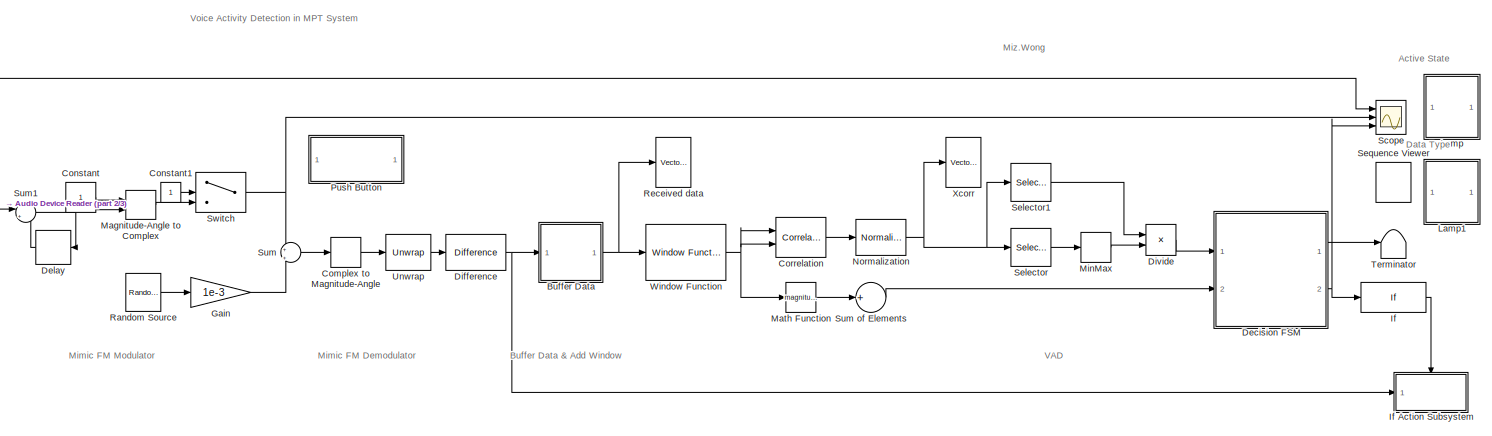
[diagram: root canvas - part 1/3, most of the canvas]
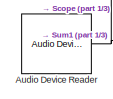
[diagram: root canvas - part 2/3, middle left region]
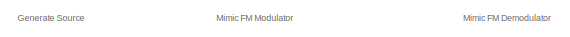
[diagram: root canvas - part 3/3, bottom left region]
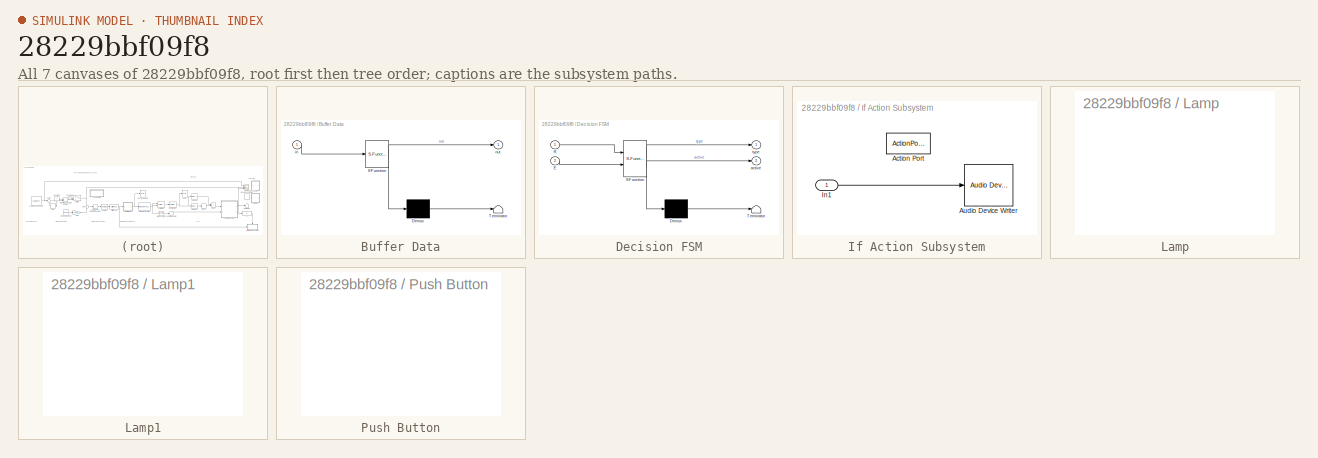
[diagram: thumbnail index - all 7 canvases of the model, root first then tree order]
MODEL slx_28229bbf09f8
KIND model
CONFIG AbsTol = auto
CONFIG EnableMultiTasking = off
CONFIG FixedStep = auto
CONFIG MaxStep = auto
CONFIG MinStep = auto
CONFIG RelTol = 1e-3
CONFIG SampleTimeConstraint = Unconstrained
CONFIG Solver = VariableStepAuto
CONFIG SolverName = VariableStepAuto
CONFIG StartTime = 0.0
CONFIG StopTime = 100.0
BLOCK [Reference] Audio Device Reader  REF=audiosources/Audio Device
Reader
  Ports = [0, 1]
  SourceBlock = audiosources/Audio Device\nReader
  SourceType = Audio Device Reader
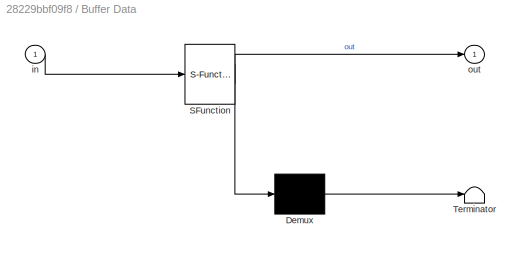
BLOCK [SubSystem] Buffer Data
  ErrorFcn = Stateflow.Translate.translate
  PermitHierarchicalResolution = ExplicitOnly
  Ports = [1, 1]
  RequestExecContextInheritance = off
  SFBlockType = Chart
  TreatAsAtomicUnit = on
  Variant = off
BLOCK [Demux] Buffer Data/ Demux 
  Outputs = 1
  Ports = [1, 1]
BLOCK [S-Function] Buffer Data/ SFunction 
  EnableBusSupport = on
  FunctionName = sf_sfun
  PortCounts = [1 2]
  Ports = [1, 2]
  SFcnIsStateOwnerBlock = off
  SFunctionDeploymentMode = off
  Tag = Stateflow S-Function VAD_Top1 1
BLOCK [Terminator] Buffer Data/ Terminator 
BLOCK [Inport] Buffer Data/in
  IconDisplay = Port number
BLOCK [Outport] Buffer Data/out
  IconDisplay = Port number
BLOCK [ComplexToMagnitudeAngle] Complex to Magnitude-Angle
  Output = Angle
  Ports = [1, 1]
BLOCK [Constant] Constant
BLOCK [Constant] Constant1
BLOCK [Reference] Correlation  REF=dspstat3/Correlation
  Ports = [2, 1]
  SourceBlock = dspstat3/Correlation
  SourceType = Correlation
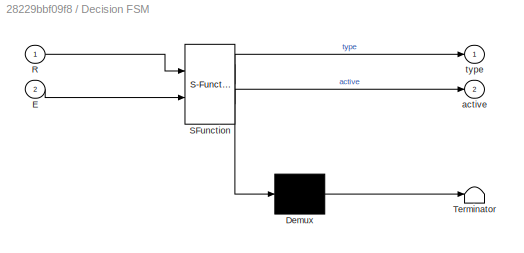
BLOCK [SubSystem] Decision FSM
  ErrorFcn = Stateflow.Translate.translate
  PermitHierarchicalResolution = ExplicitOnly
  Ports = [2, 2]
  RequestExecContextInheritance = off
  SFBlockType = Chart
  TreatAsAtomicUnit = on
  Variant = off
BLOCK [Demux] Decision FSM/ Demux 
  Outputs = 1
  Ports = [1, 1]
BLOCK [S-Function] Decision FSM/ SFunction 
  EnableBusSupport = on
  FunctionName = sf_sfun
  PortCounts = [2 3]
  Ports = [2, 3]
  SFcnIsStateOwnerBlock = off
  SFunctionDeploymentMode = off
  Tag = Stateflow S-Function VAD_Top1 2
BLOCK [Terminator] Decision FSM/ Terminator 
BLOCK [Inport] Decision FSM/E
  IconDisplay = Port number
  Port = 2
BLOCK [Inport] Decision FSM/R
  IconDisplay = Port number
BLOCK [Outport] Decision FSM/active
  IconDisplay = Port number
  Port = 2
BLOCK [Outport] Decision FSM/type
  IconDisplay = Port number
BLOCK [Delay] Delay
  DelayLength = 1
  InputPortMap = u0
  Ports = [1, 1]
BLOCK [Reference] Difference  REF=simulink/Discrete/Difference
  Ports = [1, 1]
  SourceBlock = simulink/Discrete/Difference
  SourceType = Difference
BLOCK [Product] Divide
  InputSameDT = off
  Inputs = */
  OutDataTypeStr = Inherit: Inherit via internal rule
  Ports = [2, 1]
  RndMeth = Floor
  SaturateOnIntegerOverflow = off
BLOCK [Gain] Gain
  Gain = 1e-3
  OutDataTypeStr = Inherit: Inherit via internal rule
  ParamDataTypeStr = Inherit: Inherit via internal rule
  SaturateOnIntegerOverflow = off
BLOCK [If] If
  Ports = [1, 1]
  ShowElse = off
BLOCK [SubSystem] If Action Subsystem
  Ports = [1, 0, 0, 0, 0, 0, 0, 1]
  RequestExecContextInheritance = off
  TreatAsAtomicUnit = on
  Variant = off
BLOCK [ActionPort] If Action Subsystem/Action Port
  ActionType = then
BLOCK [Reference] If Action Subsystem/Audio Device Writer  REF=dspsnks4/Audio Device
Writer
  Ports = [1]
  SourceBlock = dspsnks4/Audio Device\nWriter
  SourceType = Audio Device Writer
BLOCK [Inport] If Action Subsystem/In1
  IconDisplay = Port number
BLOCK [SubSystem] Lamp
  DialogController = hmiCreateDDGDialog
  IsWebBlock = on
  MaskHideContents = on
  Ports = []
  RequestExecContextInheritance = off
  Variant = off
BLOCK [SubSystem] Lamp1
  DialogController = hmiCreateDDGDialog
  IsWebBlock = on
  MaskHideContents = on
  Ports = []
  RequestExecContextInheritance = off
  Variant = off
BLOCK [MagnitudeAngleToComplex] Magnitude-Angle to Complex
  Ports = [2, 1]
BLOCK [Math] Math Function
  Operator = magnitude^2
  Ports = [1, 1]
BLOCK [MinMax] MinMax
  Function = max
  InputSameDT = off
  Ports = [1, 1]
  SaturateOnIntegerOverflow = off
BLOCK [Reference] Normalization  REF=dspmathops/Normalization
  Ports = [1, 1]
  SourceBlock = dspmathops/Normalization
  SourceType = Normalization
BLOCK [SubSystem] Push Button
  DialogController = hmiCreateDDGDialog
  IsWebBlock = on
  Ports = []
  RequestExecContextInheritance = off
  Variant = off
BLOCK [Reference] Random Source  REF=dspsrcs4/Random
Source
  Ports = [0, 1]
  SourceBlock = dspsrcs4/Random\nSource
  SourceType = Random Source
  UserDataPersistent = on
BLOCK [Reference] Received data  REF=dspsnks4/Vector
Scope
  Ports = [1]
  SourceBlock = dspsnks4/Vector\nScope
  SourceType = Vector Scope
BLOCK [Scope] Scope
  NumInputPorts = 3
  Ports = [3]
  ScopeSpecificationString = Simulink.scopes.TimeScopeBlockCfg('CurrentConfiguration', extmgr.ConfigurationSet(extmgr.Configuration('Core','General UI',true),extmgr.Configuration('Core','Source UI',true),extmgr.Configuration('Sources','WiredSimulink',true),extmgr.Configuration('Visuals','Time Domain',true,'InputProcessing','FrameProcessing','SerializedDisplays',{struct('MinYLimReal','-0.84858','MaxYLimReal','2.31651','YLabelR...<+1491ch>
BLOCK [Selector] Selector
  IndexOptions = Index vector (dialog)
  Indices = [721+10:1439]
  InputPortWidth = 1439
  OutputSizes = 1
  Ports = [1, 1]
BLOCK [Selector] Selector1
  IndexOptions = Index vector (dialog)
  Indices = 720
  InputPortWidth = 1439
  OutputSizes = 1
  Ports = [1, 1]
BLOCK [MessageViewer] Sequence Viewer
BLOCK [Sum] Sum
  IconShape = round
  InputSameDT = off
  Inputs = +|+
  OutDataTypeStr = Inherit: Inherit via internal rule
  Ports = [2, 1]
  SaturateOnIntegerOverflow = off
BLOCK [Sum] Sum of Elements
  InputSameDT = off
  Inputs = +
  OutDataTypeStr = Inherit: Inherit via internal rule
  Ports = [1, 1]
  SaturateOnIntegerOverflow = off
BLOCK [Sum] Sum1
  IconShape = round
  InputSameDT = off
  Inputs = |++
  OutDataTypeStr = Inherit: Inherit via internal rule
  Ports = [2, 1]
  SaturateOnIntegerOverflow = off
BLOCK [Switch] Switch
  Criteria = u2 > Threshold
  InputSameDT = off
  SaturateOnIntegerOverflow = off
BLOCK [Terminator] Terminator
BLOCK [Reference] Unwrap  REF=dspsigops/Unwrap
  Ports = [1, 1]
  SourceBlock = dspsigops/Unwrap
  SourceType = Unwrap
  UserDataPersistent = on
BLOCK [Reference] Window Function  REF=dspsigops/Window
Function
  Ports = [1, 1]
  SourceBlock = dspsigops/Window\nFunction
  SourceType = Window Function
BLOCK [Reference] Xcorr  REF=dspsnks4/Vector
Scope
  Ports = [1]
  SourceBlock = dspsnks4/Vector\nScope
  SourceType = Vector Scope
ANNOTATION (root): Active State
ANNOTATION (root): Buffer Data & Add Window
ANNOTATION (root): Data Type
ANNOTATION (root): Generate Source
ANNOTATION (root): Mimic FM Demodulator
ANNOTATION (root): Mimic FM Modulator
ANNOTATION (root): Miz.Wong
ANNOTATION (root): VAD
ANNOTATION (root): Voice Activity Detection in MPT System
NET Audio Device Reader:1 -> Scope:1, Sum1:1
NET Buffer Data:1 -> Received data:1, Window Function:1
LINE Complex to Magnitude-Angle:1 -> Unwrap:1
LINE Constant1:1 -> Switch:2
LINE Constant:1 -> Magnitude-Angle to Complex:1
LINE Correlation:1 -> Normalization:1
LINE Decision FSM:1 -> Terminator:1
NET Decision FSM:2 -> If:1, Scope:3
LINE Delay:1 -> Sum1:2
NET Difference:1 -> Buffer Data:1, If Action Subsystem:1
LINE Divide:1 -> Decision FSM:1
LINE Gain:1 -> Sum:2
LINE If Action Subsystem/In1:1 -> If Action Subsystem/Audio Device Writer:1
LINE If:1 -> If Action Subsystem:ifaction
LINE Magnitude-Angle to Complex:1 -> Switch:3
LINE Math Function:1 -> Sum of Elements:1
LINE MinMax:1 -> Divide:2
NET Normalization:1 -> Selector1:1, Selector:1, Xcorr:1
LINE Random Source:1 -> Gain:1
LINE Selector1:1 -> Divide:1
LINE Selector:1 -> MinMax:1
LINE Sum of Elements:1 -> Decision FSM:2
NET Sum1:1 -> Delay:1, Magnitude-Angle to Complex:2
LINE Sum:1 -> Complex to Magnitude-Angle:1
NET Switch:1 -> Scope:2, Sum:1
LINE Unwrap:1 -> Difference:1
NET Window Function:1 -> Correlation:1, Correlation:2, Math Function:1
note: NET lines group one-source signal fan-out (src -> all destinations, sorted); 1:1 wires keep LINE
CHART Buffer Data states=3 transitions=3
  STATE_LABEL 'data30ms\nentry:cnt=1;\nout = [zeros(8e3*0.03*2,1);in];\nbuffer1=in;'
  STATE_LABEL 'data60ms\nentry:cnt=2;\nout = [zeros(8e3*0.03,1);buffer1;in];\nbuffer2=[buffer1;in];'
  STATE_LABEL 'data90ms\nentry:out=[buffer2;in];\nbuffer2=out(8e3*0.03+1:end);\ndu:out=[buffer2;in];\nbuffer2=out(8e3*0.03+1:end);'
CHART Decision FSM states=3 transitions=9
  STATE_LABEL 'Voice\nentry:type = 1;\nactive = 1;'
  STATE_LABEL 'CH_Noise\nentry:type = 0;\nactive = 0;'
  STATE_LABEL 'Soft_Noise\nentry: type = 2;\n active = 1;'
